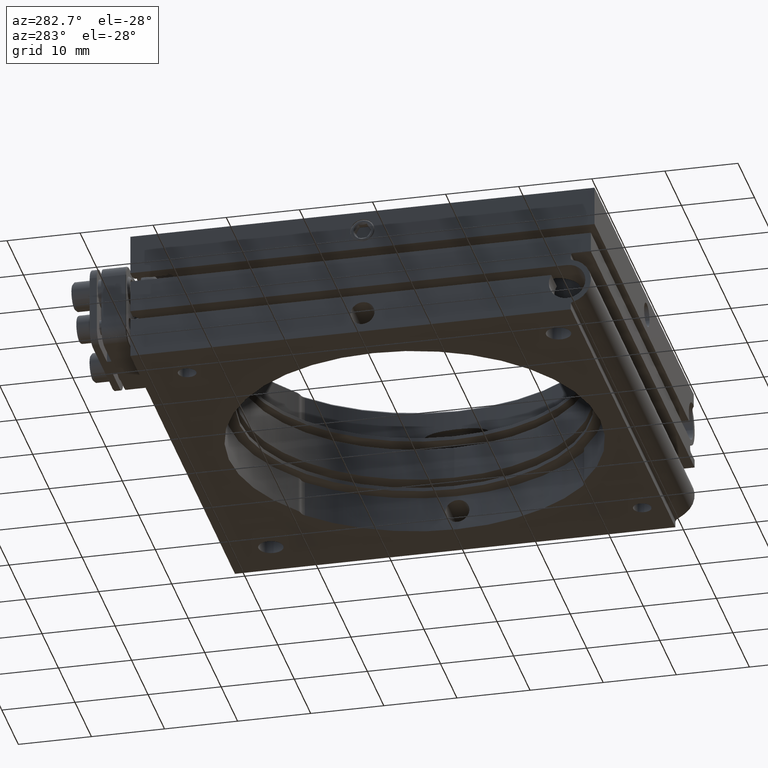
[diagram: clean part render]
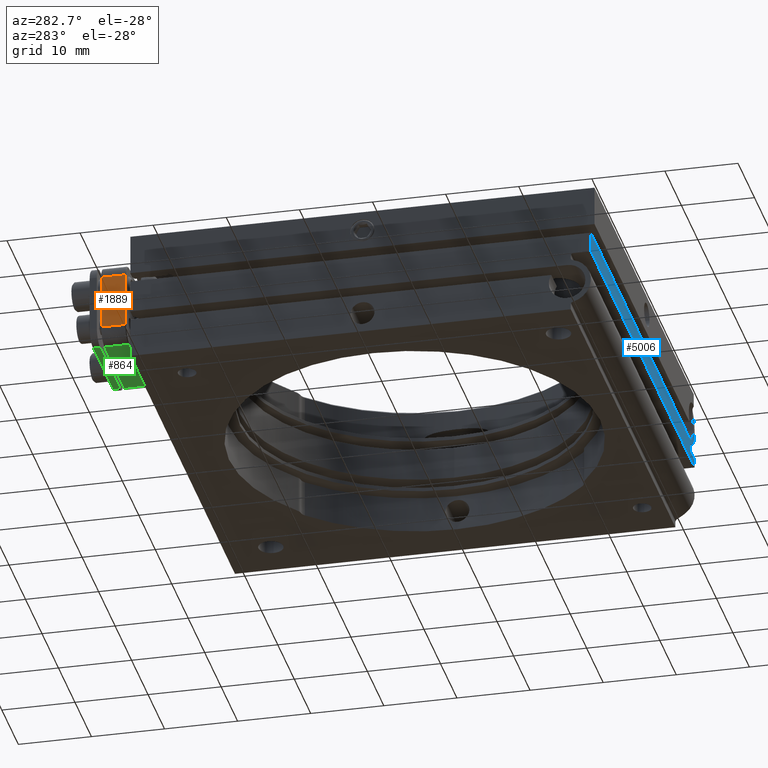
[diagram: same view with three faces highlighted in distinct colors, each labeled with its STEP entity id]
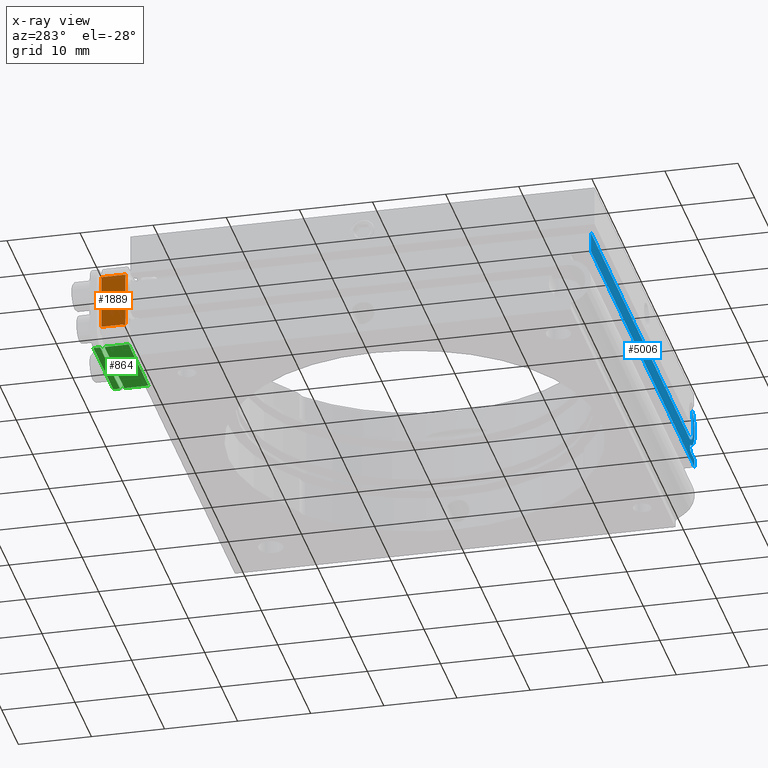
[diagram: x-ray of the same camera — body ghosted, the three highlighted faces saturated]
A machine part, auxiliary view with three faces highlighted in distinct colors.
The next image is the same camera in x-ray (body ghosted, the three faces saturated) — at least one of them is partly hidden behind the body in this view.
Their STEP definitions:

[orange] entity #1889 — the highlighted planar face has unit normal (1, 0, -0).
#904 = EDGE_CURVE ( 'NONE', #3166, #12645, #9595, .T. ) ;
#1052 = CARTESIAN_POINT ( 'NONE',  ( -8.000000000000000000, 5.000000000000000000, -5.749999999999999112 ) ) ;
#1889 = ADVANCED_FACE ( 'NONE', ( #3259 ), #4210, .F. ) ;
#1948 = CARTESIAN_POINT ( 'NONE',  ( -8.000000000000000000, 3.400000000000000355, -5.749999999999999112 ) ) ;
#2064 = DIRECTION ( 'NONE',  ( 1.000000000000000000, 0.000000000000000000, -1.508455196501571429E-16 ) ) ;
#2077 = CARTESIAN_POINT ( 'NONE',  ( -8.000000000000000000, 0.1000000000000011297, -5.749999999999999112 ) ) ;
#3166 = VERTEX_POINT ( 'NONE', #12949 ) ;
#3259 = FACE_OUTER_BOUND ( 'NONE', #13174, .T. ) ;
#3331 = ORIENTED_EDGE ( 'NONE', *, *, #7347, .T. ) ;
#3685 = CARTESIAN_POINT ( 'NONE',  ( -8.000000000000000000, 0.1000000000000011297, -3.749999999999998668 ) ) ;
#4210 = PLANE ( 'NONE',  #5076 ) ;
#4620 = VECTOR ( 'NONE', #12394, 1000.000000000000000 ) ;
#5076 = AXIS2_PLACEMENT_3D ( 'NONE', #1052, #2064, #9408 ) ;
#5446 = ORIENTED_EDGE ( 'NONE', *, *, #8997, .T. ) ;
#6509 = VECTOR ( 'NONE', #10740, 1000.000000000000000 ) ;
#6513 = CARTESIAN_POINT ( 'NONE',  ( -8.000000000000000000, 5.000000000000000000, -3.749999999999998668 ) ) ;
#6791 = VECTOR ( 'NONE', #7014, 1000.000000000000000 ) ;
#7014 = DIRECTION ( 'NONE',  ( -1.508455196501571429E-16, -2.369615550880326040E-32, -1.000000000000000000 ) ) ;
#7347 = EDGE_CURVE ( 'NONE', #12645, #11803, #11313, .T. ) ;
#7411 = EDGE_CURVE ( 'NONE', #13155, #3166, #8218, .T. ) ;
#8004 = CARTESIAN_POINT ( 'NONE',  ( -7.999999999999998224, 3.399999999999999911, 3.750000000000000888 ) ) ;
#8218 = LINE ( 'NONE', #1948, #6791 ) ;
#8969 = CARTESIAN_POINT ( 'NONE',  ( -7.999999999999998224, 0.1000000000000011297, 3.750000000000000888 ) ) ;
#8997 = EDGE_CURVE ( 'NONE', #11803, #13155, #11909, .T. ) ;
#9408 = DIRECTION ( 'NONE',  ( -1.508455196501571429E-16, 0.000000000000000000, -1.000000000000000000 ) ) ;
#9595 = LINE ( 'NONE', #6513, #6509 ) ;
#10740 = DIRECTION ( 'NONE',  ( 0.000000000000000000, -1.000000000000000000, 0.000000000000000000 ) ) ;
#10752 = CARTESIAN_POINT ( 'NONE',  ( -7.999999999999998224, 5.000000000000000000, 3.750000000000000888 ) ) ;
#11313 = LINE ( 'NONE', #2077, #4620 ) ;
#11321 = ORIENTED_EDGE ( 'NONE', *, *, #7411, .T. ) ;
#11803 = VERTEX_POINT ( 'NONE', #8969 ) ;
#11841 = DIRECTION ( 'NONE',  ( -0.000000000000000000, 1.000000000000000000, -0.000000000000000000 ) ) ;
#11909 = LINE ( 'NONE', #10752, #12625 ) ;
#12394 = DIRECTION ( 'NONE',  ( 1.508455196501571429E-16, 0.000000000000000000, 1.000000000000000000 ) ) ;
#12625 = VECTOR ( 'NONE', #11841, 1000.000000000000000 ) ;
#12645 = VERTEX_POINT ( 'NONE', #3685 ) ;
#12949 = CARTESIAN_POINT ( 'NONE',  ( -8.000000000000000000, 3.400000000000000355, -3.749999999999998668 ) ) ;
#13118 = ORIENTED_EDGE ( 'NONE', *, *, #904, .T. ) ;
#13155 = VERTEX_POINT ( 'NONE', #8004 ) ;
#13174 = EDGE_LOOP ( 'NONE', ( #13118, #3331, #5446, #11321 ) ) ;

[blue] entity #5006 — the highlighted planar face has unit normal (0, 1, 0).
#130 = DIRECTION ( 'NONE',  ( 0.000000000000000000, -1.000000000000000000, 0.000000000000000000 ) ) ;
#166 = EDGE_CURVE ( 'NONE', #6399, #12454, #12312, .T. ) ;
#310 = DIRECTION ( 'NONE',  ( -1.000000000000000000, 1.334402673828313339E-16, 0.000000000000000000 ) ) ;
#515 = AXIS2_PLACEMENT_3D ( 'NONE', #1841, #11819, #826 ) ;
#803 = ORIENTED_EDGE ( 'NONE', *, *, #10150, .F. ) ;
#826 = DIRECTION ( 'NONE',  ( -1.334402673828313339E-16, -1.000000000000000000, 0.000000000000000000 ) ) ;
#1013 = CARTESIAN_POINT ( 'NONE',  ( 31.24999999999998579, 4.749999999999999112, -28.00000000000001776 ) ) ;
#1029 = AXIS2_PLACEMENT_3D ( 'NONE', #5392, #310, #3337 ) ;
#1037 = VECTOR ( 'NONE', #11895, 1000.000000000000000 ) ;
#1054 = CARTESIAN_POINT ( 'NONE',  ( 31.24999999999998579, 0.5499999999999980460, -28.85000000000001918 ) ) ;
#1072 = CARTESIAN_POINT ( 'NONE',  ( 31.25000000000000000, 7.311737691489897273, -30.00000000000002132 ) ) ;
#1199 = CARTESIAN_POINT ( 'NONE',  ( 31.24999999999998579, 1.591890292413144836, -28.76736111111112493 ) ) ;
#1233 = DIRECTION ( 'NONE',  ( 0.000000000000000000, 0.000000000000000000, -1.000000000000000000 ) ) ;
#1312 = DIRECTION ( 'NONE',  ( 0.000000000000000000, -1.000000000000000000, 1.387778780781444492E-15 ) ) ;
#1360 = DIRECTION ( 'NONE',  ( 1.335472871940120947E-32, 1.000802005371240305E-16, -1.000000000000000000 ) ) ;
#1362 = CIRCLE ( 'NONE', #6993, 2.500000000000002220 ) ;
#1509 = VECTOR ( 'NONE', #1233, 1000.000000000000000 ) ;
#1841 = CARTESIAN_POINT ( 'NONE',  ( 31.25000000000000711, 67.00196847342608919, -31.75000000000000000 ) ) ;
#1854 = CARTESIAN_POINT ( 'NONE',  ( 31.24999999999998579, 4.749999999999999112, -31.25000000000001421 ) ) ;
#1908 = CARTESIAN_POINT ( 'NONE',  ( 31.25000000000000000, 6.250000000000000000, -30.00000000000002132 ) ) ;
#2036 = VERTEX_POINT ( 'NONE', #2250 ) ;
#2250 = CARTESIAN_POINT ( 'NONE',  ( 31.25000000000000000, 4.749999999999999112, -30.50000000000002132 ) ) ;
#2364 = DIRECTION ( 'NONE',  ( -1.334402673828313339E-16, -1.000000000000000000, -0.000000000000000000 ) ) ;
#2671 = VERTEX_POINT ( 'NONE', #5625 ) ;
#2747 = CIRCLE ( 'NONE', #1029, 3.250000000000000000 ) ;
#2964 = ORIENTED_EDGE ( 'NONE', *, *, #11288, .F. ) ;
#3003 = CARTESIAN_POINT ( 'NONE',  ( 31.25000000000000000, -0.5500000000000000444, -31.75000000000000000 ) ) ;
#3033 = ORIENTED_EDGE ( 'NONE', *, *, #12383, .T. ) ;
#3064 = CARTESIAN_POINT ( 'NONE',  ( 31.25000000000000000, 2.249999999999998668, -28.00000000000001776 ) ) ;
#3097 = DIRECTION ( 'NONE',  ( -1.000000000000000000, 1.334402673828313339E-16, 0.000000000000000000 ) ) ;
#3337 = DIRECTION ( 'NONE',  ( 0.000000000000000000, -1.000000000000000000, 0.000000000000000000 ) ) ;
#3408 = LINE ( 'NONE', #6726, #5753 ) ;
#3455 = ORIENTED_EDGE ( 'NONE', *, *, #7955, .F. ) ;
#3506 = CARTESIAN_POINT ( 'NONE',  ( 31.25000000000000711, 67.00196847342608919, 31.75000000000000000 ) ) ;
#3753 = CARTESIAN_POINT ( 'NONE',  ( 31.24999999999998579, 1.251786170057638481, -28.85000000000001918 ) ) ;
#4176 = DIRECTION ( 'NONE',  ( 1.000000000000000000, -1.334402673828313339E-16, -0.000000000000000000 ) ) ;
#4259 = EDGE_CURVE ( 'NONE', #12454, #2036, #1362, .T. ) ;
#4362 = CIRCLE ( 'NONE', #11905, 2.500000000000002220 ) ;
#4452 = AXIS2_PLACEMENT_3D ( 'NONE', #13164, #6897, #7982 ) ;
#4706 = DIRECTION ( 'NONE',  ( 1.000000000000000000, -1.334402673828313339E-16, -0.000000000000000000 ) ) ;
#4861 = EDGE_LOOP ( 'NONE', ( #9373, #6468, #3455, #2964, #10905, #8549, #803, #6786, #6766, #7087, #5121, #9344, #3033 ) ) ;
#4873 = EDGE_CURVE ( 'NONE', #2671, #7467, #8455, .T. ) ;
#5006 = ADVANCED_FACE ( 'NONE', ( #11001 ), #5903, .F. ) ;
#5121 = ORIENTED_EDGE ( 'NONE', *, *, #4259, .F. ) ;
#5337 = VECTOR ( 'NONE', #13198, 1000.000000000000000 ) ;
#5392 = CARTESIAN_POINT ( 'NONE',  ( 31.24999999999998579, 4.749999999999999112, -28.00000000000001776 ) ) ;
#5581 = VERTEX_POINT ( 'NONE', #1072 ) ;
#5624 = LINE ( 'NONE', #3506, #7516 ) ;
#5625 = CARTESIAN_POINT ( 'NONE',  ( 31.24999999999998579, 1.251786170057638481, -28.50000000000001776 ) ) ;
#5738 = AXIS2_PLACEMENT_3D ( 'NONE', #3753, #4706, #9825 ) ;
#5753 = VECTOR ( 'NONE', #6530, 1000.000000000000000 ) ;
#5785 = VERTEX_POINT ( 'NONE', #1199 ) ;
#5903 = PLANE ( 'NONE',  #515 ) ;
#6229 = CARTESIAN_POINT ( 'NONE',  ( 31.25000000000000000, 4.749999999999999112, -28.00000000000001776 ) ) ;
#6273 = EDGE_CURVE ( 'NONE', #2036, #11234, #4362, .T. ) ;
#6374 = CIRCLE ( 'NONE', #5738, 0.3500000000000000333 ) ;
#6399 = VERTEX_POINT ( 'NONE', #9806 ) ;
#6468 = ORIENTED_EDGE ( 'NONE', *, *, #12024, .T. ) ;
#6530 = DIRECTION ( 'NONE',  ( -0.000000000000000000, -1.000000000000000000, -0.000000000000000000 ) ) ;
#6637 = CARTESIAN_POINT ( 'NONE',  ( 31.24999999999998579, 1.538691855333708558, -28.50000000000001776 ) ) ;
#6726 = CARTESIAN_POINT ( 'NONE',  ( 31.25000000000000000, 9.000000000000000000, -30.00000000000002132 ) ) ;
#6766 = ORIENTED_EDGE ( 'NONE', *, *, #8962, .T. ) ;
#6786 = ORIENTED_EDGE ( 'NONE', *, *, #6972, .F. ) ;
#6897 = DIRECTION ( 'NONE',  ( 1.000000000000000000, -1.334402673828313339E-16, -0.000000000000000000 ) ) ;
#6972 = EDGE_CURVE ( 'NONE', #5581, #12205, #8440, .T. ) ;
#6993 = AXIS2_PLACEMENT_3D ( 'NONE', #6229, #4176, #130 ) ;
#7087 = ORIENTED_EDGE ( 'NONE', *, *, #6273, .F. ) ;
#7404 = DIRECTION ( 'NONE',  ( 1.000000000000000000, -1.334402673828313339E-16, -0.000000000000000000 ) ) ;
#7467 = VERTEX_POINT ( 'NONE', #12207 ) ;
#7516 = VECTOR ( 'NONE', #2364, 1000.000000000000000 ) ;
#7955 = EDGE_CURVE ( 'NONE', #12808, #9657, #12635, .T. ) ;
#7982 = DIRECTION ( 'NONE',  ( 0.000000000000000000, -1.000000000000000000, 0.000000000000000000 ) ) ;
#8125 = VERTEX_POINT ( 'NONE', #10668 ) ;
#8440 = CIRCLE ( 'NONE', #12318, 3.250000000000000000 ) ;
#8455 = LINE ( 'NONE', #6637, #8709 ) ;
#8549 = ORIENTED_EDGE ( 'NONE', *, *, #12644, .F. ) ;
#8709 = VECTOR ( 'NONE', #9459, 1000.000000000000000 ) ;
#8863 = CARTESIAN_POINT ( 'NONE',  ( 31.25000000000000711, 67.00196847342608919, -31.24999999999998579 ) ) ;
#8962 = EDGE_CURVE ( 'NONE', #5581, #11234, #3408, .T. ) ;
#9158 = EDGE_CURVE ( 'NONE', #9294, #8125, #13267, .T. ) ;
#9294 = VERTEX_POINT ( 'NONE', #10218 ) ;
#9344 = ORIENTED_EDGE ( 'NONE', *, *, #166, .F. ) ;
#9373 = ORIENTED_EDGE ( 'NONE', *, *, #9158, .T. ) ;
#9459 = DIRECTION ( 'NONE',  ( -1.334402673828313339E-16, -1.000000000000000000, 9.113463168095265324E-33 ) ) ;
#9589 = CARTESIAN_POINT ( 'NONE',  ( 31.24999999999998579, 0.5499999999999980460, -28.50000000000001421 ) ) ;
#9657 = VERTEX_POINT ( 'NONE', #9864 ) ;
#9806 = CARTESIAN_POINT ( 'NONE',  ( 31.25000000000000000, 2.250000000000001776, 31.75000000000000000 ) ) ;
#9825 = DIRECTION ( 'NONE',  ( 0.000000000000000000, -1.000000000000000000, 0.000000000000000000 ) ) ;
#9864 = CARTESIAN_POINT ( 'NONE',  ( 31.24999999999998579, 0.5499999999999983791, -31.24999999999999289 ) ) ;
#10150 = EDGE_CURVE ( 'NONE', #12205, #5785, #2747, .T. ) ;
#10218 = CARTESIAN_POINT ( 'NONE',  ( 31.25000000000000000, -0.5500000000000000444, 31.75000000000000000 ) ) ;
#10657 = CARTESIAN_POINT ( 'NONE',  ( 31.25000000000000000, 2.249999999999996891, -28.00000000000001776 ) ) ;
#10668 = CARTESIAN_POINT ( 'NONE',  ( 31.24999999999998579, -0.5499999999999949374, -31.24999999999999289 ) ) ;
#10879 = VECTOR ( 'NONE', #1360, 1000.000000000000000 ) ;
#10905 = ORIENTED_EDGE ( 'NONE', *, *, #4873, .F. ) ;
#11001 = FACE_OUTER_BOUND ( 'NONE', #4861, .T. ) ;
#11234 = VERTEX_POINT ( 'NONE', #1908 ) ;
#11288 = EDGE_CURVE ( 'NONE', #7467, #12808, #11562, .T. ) ;
#11562 = CIRCLE ( 'NONE', #4452, 0.3500000000000000333 ) ;
#11695 = LINE ( 'NONE', #8863, #1037 ) ;
#11819 = DIRECTION ( 'NONE',  ( -1.000000000000000000, 1.334402673828313339E-16, 0.000000000000000000 ) ) ;
#11895 = DIRECTION ( 'NONE',  ( 1.334402673828313339E-16, 1.000000000000000000, 1.000802005371236360E-16 ) ) ;
#11905 = AXIS2_PLACEMENT_3D ( 'NONE', #12515, #7404, #1312 ) ;
#12024 = EDGE_CURVE ( 'NONE', #8125, #9657, #11695, .T. ) ;
#12205 = VERTEX_POINT ( 'NONE', #1854 ) ;
#12207 = CARTESIAN_POINT ( 'NONE',  ( 31.24999999999998579, 0.8999999999999980238, -28.50000000000001776 ) ) ;
#12226 = DIRECTION ( 'NONE',  ( 0.000000000000000000, -1.000000000000000000, 0.000000000000000000 ) ) ;
#12312 = LINE ( 'NONE', #3064, #1509 ) ;
#12318 = AXIS2_PLACEMENT_3D ( 'NONE', #1013, #3097, #12226 ) ;
#12383 = EDGE_CURVE ( 'NONE', #6399, #9294, #5624, .T. ) ;
#12454 = VERTEX_POINT ( 'NONE', #10657 ) ;
#12515 = CARTESIAN_POINT ( 'NONE',  ( 31.25000000000000000, 4.749999999999999112, -28.00000000000001776 ) ) ;
#12635 = LINE ( 'NONE', #9589, #10879 ) ;
#12644 = EDGE_CURVE ( 'NONE', #5785, #2671, #6374, .T. ) ;
#12808 = VERTEX_POINT ( 'NONE', #1054 ) ;
#13164 = CARTESIAN_POINT ( 'NONE',  ( 31.24999999999998579, 0.8999999999999980238, -28.85000000000001918 ) ) ;
#13198 = DIRECTION ( 'NONE',  ( -0.000000000000000000, -0.000000000000000000, -1.000000000000000000 ) ) ;
#13267 = LINE ( 'NONE', #3003, #5337 ) ;

[green] entity #864 — the highlighted planar face has unit normal (0, 0, 1).
#66 = CARTESIAN_POINT ( 'NONE',  ( 1.800000000000000044, 4.000000000000000888, -5.749999999999999112 ) ) ;
#68 = LINE ( 'NONE', #1147, #12358 ) ;
#97 = EDGE_CURVE ( 'NONE', #7346, #12815, #5173, .T. ) ;
#157 = DIRECTION ( 'NONE',  ( 1.000000000000000000, 0.000000000000000000, 0.000000000000000000 ) ) ;
#301 = VERTEX_POINT ( 'NONE', #11616 ) ;
#316 = ORIENTED_EDGE ( 'NONE', *, *, #5237, .T. ) ;
#361 = DIRECTION ( 'NONE',  ( 0.000000000000000000, 0.000000000000000000, 1.000000000000000000 ) ) ;
#363 = DIRECTION ( 'NONE',  ( -1.000000000000000000, -1.047259278399945846E-16, 0.000000000000000000 ) ) ;
#729 = VECTOR ( 'NONE', #2101, 1000.000000000000000 ) ;
#855 = EDGE_CURVE ( 'NONE', #12815, #2186, #7458, .T. ) ;
#864 = ADVANCED_FACE ( 'NONE', ( #11559 ), #8662, .F. ) ;
#900 = CARTESIAN_POINT ( 'NONE',  ( 1.800000000000000266, 3.400000000000001688, -5.749999999999999112 ) ) ;
#1089 = LINE ( 'NONE', #12301, #13299 ) ;
#1132 = VERTEX_POINT ( 'NONE', #900 ) ;
#1147 = CARTESIAN_POINT ( 'NONE',  ( 6.000000000000000000, 5.000000000000000000, -5.749999999999999112 ) ) ;
#1220 = VECTOR ( 'NONE', #157, 1000.000000000000000 ) ;
#1245 = CARTESIAN_POINT ( 'NONE',  ( 6.000000000000000000, 4.000000000000000000, -5.749999999999999112 ) ) ;
#1288 = CARTESIAN_POINT ( 'NONE',  ( 1.800000000000000044, 4.000000000000000888, -5.749999999999999112 ) ) ;
#1394 = LINE ( 'NONE', #11922, #12411 ) ;
#1637 = VERTEX_POINT ( 'NONE', #6669 ) ;
#2101 = DIRECTION ( 'NONE',  ( 1.000000000000000000, 1.047259278399945846E-16, 0.000000000000000000 ) ) ;
#2186 = VERTEX_POINT ( 'NONE', #10612 ) ;
#2306 = DIRECTION ( 'NONE',  ( 3.614007241618351729E-16, -1.000000000000000000, 0.000000000000000000 ) ) ;
#2582 = CARTESIAN_POINT ( 'NONE',  ( -1.800000000000000044, 4.000000000000000888, -5.749999999999999112 ) ) ;
#2614 = EDGE_CURVE ( 'NONE', #1637, #1132, #3308, .T. ) ;
#2649 = ORIENTED_EDGE ( 'NONE', *, *, #12687, .T. ) ;
#2808 = ORIENTED_EDGE ( 'NONE', *, *, #4227, .T. ) ;
#3302 = ORIENTED_EDGE ( 'NONE', *, *, #97, .T. ) ;
#3308 = LINE ( 'NONE', #1288, #8524 ) ;
#3394 = ORIENTED_EDGE ( 'NONE', *, *, #11539, .T. ) ;
#3414 = VERTEX_POINT ( 'NONE', #1245 ) ;
#3836 = VECTOR ( 'NONE', #363, 1000.000000000000000 ) ;
#4086 = CARTESIAN_POINT ( 'NONE',  ( -6.000000000000000000, 3.400000000000000355, -5.749999999999999112 ) ) ;
#4180 = EDGE_CURVE ( 'NONE', #1132, #13002, #12292, .T. ) ;
#4227 = EDGE_CURVE ( 'NONE', #3414, #1637, #12420, .T. ) ;
#5052 = DIRECTION ( 'NONE',  ( 0.000000000000000000, -1.000000000000000000, 0.000000000000000000 ) ) ;
#5085 = DIRECTION ( 'NONE',  ( 0.000000000000000000, -1.000000000000000000, 0.000000000000000000 ) ) ;
#5149 = ORIENTED_EDGE ( 'NONE', *, *, #2614, .T. ) ;
#5173 = LINE ( 'NONE', #11554, #10994 ) ;
#5184 = LINE ( 'NONE', #13071, #12830 ) ;
#5212 = AXIS2_PLACEMENT_3D ( 'NONE', #5638, #361, #8463 ) ;
#5237 = EDGE_CURVE ( 'NONE', #8470, #3414, #68, .T. ) ;
#5271 = VECTOR ( 'NONE', #6163, 1000.000000000000000 ) ;
#5279 = CARTESIAN_POINT ( 'NONE',  ( 1.800000000000000266, 3.400000000000001688, -5.749999999999999112 ) ) ;
#5302 = DIRECTION ( 'NONE',  ( -0.000000000000000000, 1.000000000000000000, -0.000000000000000000 ) ) ;
#5553 = VERTEX_POINT ( 'NONE', #6094 ) ;
#5638 = CARTESIAN_POINT ( 'NONE',  ( -8.000000000000000000, 5.000000000000000000, -5.749999999999999112 ) ) ;
#5776 = LINE ( 'NONE', #2582, #3836 ) ;
#6094 = CARTESIAN_POINT ( 'NONE',  ( 6.000000000000000000, 0.1000000000000011297, -5.749999999999999112 ) ) ;
#6096 = VECTOR ( 'NONE', #11492, 1000.000000000000000 ) ;
#6163 = DIRECTION ( 'NONE',  ( -1.000000000000000000, 1.047259278399945846E-16, -0.000000000000000000 ) ) ;
#6206 = CARTESIAN_POINT ( 'NONE',  ( -6.000000000000000000, 0.1000000000000011297, -5.749999999999999112 ) ) ;
#6264 = EDGE_LOOP ( 'NONE', ( #7333, #11569, #3302, #6935, #2649, #10616, #3394, #8822, #316, #2808, #5149, #7696 ) ) ;
#6290 = VERTEX_POINT ( 'NONE', #12391 ) ;
#6313 = CARTESIAN_POINT ( 'NONE',  ( 6.000000000000000000, 4.900000000000002132, -5.749999999999999112 ) ) ;
#6362 = DIRECTION ( 'NONE',  ( -1.000000000000000000, 0.000000000000000000, 0.000000000000000000 ) ) ;
#6546 = CARTESIAN_POINT ( 'NONE',  ( -6.000000000000000000, 5.000000000000000000, -5.749999999999999112 ) ) ;
#6669 = CARTESIAN_POINT ( 'NONE',  ( 1.800000000000000044, 4.000000000000000888, -5.749999999999999112 ) ) ;
#6935 = ORIENTED_EDGE ( 'NONE', *, *, #855, .T. ) ;
#6946 = CARTESIAN_POINT ( 'NONE',  ( 6.000000000000000000, 4.900000000000002132, -5.749999999999999112 ) ) ;
#7300 = LINE ( 'NONE', #6546, #8357 ) ;
#7333 = ORIENTED_EDGE ( 'NONE', *, *, #12842, .T. ) ;
#7346 = VERTEX_POINT ( 'NONE', #6206 ) ;
#7458 = LINE ( 'NONE', #11621, #6096 ) ;
#7556 = DIRECTION ( 'NONE',  ( -0.000000000000000000, 1.000000000000000000, -0.000000000000000000 ) ) ;
#7621 = DIRECTION ( 'NONE',  ( -3.614007241618349264E-16, 1.000000000000000000, -0.000000000000000000 ) ) ;
#7696 = ORIENTED_EDGE ( 'NONE', *, *, #4180, .T. ) ;
#8357 = VECTOR ( 'NONE', #7556, 1000.000000000000000 ) ;
#8394 = LINE ( 'NONE', #6313, #1220 ) ;
#8463 = DIRECTION ( 'NONE',  ( 1.000000000000000000, 0.000000000000000000, -0.000000000000000000 ) ) ;
#8470 = VERTEX_POINT ( 'NONE', #6946 ) ;
#8524 = VECTOR ( 'NONE', #2306, 1000.000000000000000 ) ;
#8662 = PLANE ( 'NONE',  #5212 ) ;
#8822 = ORIENTED_EDGE ( 'NONE', *, *, #9306, .T. ) ;
#9029 = VERTEX_POINT ( 'NONE', #10621 ) ;
#9306 = EDGE_CURVE ( 'NONE', #6290, #8470, #8394, .T. ) ;
#9473 = CARTESIAN_POINT ( 'NONE',  ( 6.000000000000000000, 3.400000000000002132, -5.749999999999999112 ) ) ;
#10612 = CARTESIAN_POINT ( 'NONE',  ( -1.799999999999999822, 3.400000000000001243, -5.749999999999999112 ) ) ;
#10616 = ORIENTED_EDGE ( 'NONE', *, *, #12042, .T. ) ;
#10621 = CARTESIAN_POINT ( 'NONE',  ( -1.800000000000000044, 4.000000000000000888, -5.749999999999999112 ) ) ;
#10967 = EDGE_CURVE ( 'NONE', #5553, #7346, #1089, .T. ) ;
#10994 = VECTOR ( 'NONE', #5302, 1000.000000000000000 ) ;
#11492 = DIRECTION ( 'NONE',  ( 1.000000000000000000, 1.570888917599918769E-16, -0.000000000000000000 ) ) ;
#11539 = EDGE_CURVE ( 'NONE', #301, #6290, #7300, .T. ) ;
#11554 = CARTESIAN_POINT ( 'NONE',  ( -6.000000000000000000, 5.000000000000000000, -5.749999999999999112 ) ) ;
#11559 = FACE_OUTER_BOUND ( 'NONE', #6264, .T. ) ;
#11569 = ORIENTED_EDGE ( 'NONE', *, *, #10967, .T. ) ;
#11616 = CARTESIAN_POINT ( 'NONE',  ( -6.000000000000000000, 4.000000000000000000, -5.749999999999999112 ) ) ;
#11621 = CARTESIAN_POINT ( 'NONE',  ( -1.799999999999999822, 3.400000000000001243, -5.749999999999999112 ) ) ;
#11922 = CARTESIAN_POINT ( 'NONE',  ( -1.800000000000000044, 4.000000000000000888, -5.749999999999999112 ) ) ;
#12042 = EDGE_CURVE ( 'NONE', #9029, #301, #5776, .T. ) ;
#12292 = LINE ( 'NONE', #5279, #729 ) ;
#12301 = CARTESIAN_POINT ( 'NONE',  ( -8.000000000000000000, 0.1000000000000011297, -5.749999999999999112 ) ) ;
#12358 = VECTOR ( 'NONE', #5085, 1000.000000000000000 ) ;
#12391 = CARTESIAN_POINT ( 'NONE',  ( -6.000000000000000000, 4.900000000000002132, -5.749999999999999112 ) ) ;
#12411 = VECTOR ( 'NONE', #7621, 1000.000000000000000 ) ;
#12420 = LINE ( 'NONE', #66, #5271 ) ;
#12687 = EDGE_CURVE ( 'NONE', #2186, #9029, #1394, .T. ) ;
#12815 = VERTEX_POINT ( 'NONE', #4086 ) ;
#12830 = VECTOR ( 'NONE', #5052, 1000.000000000000000 ) ;
#12842 = EDGE_CURVE ( 'NONE', #13002, #5553, #5184, .T. ) ;
#13002 = VERTEX_POINT ( 'NONE', #9473 ) ;
#13071 = CARTESIAN_POINT ( 'NONE',  ( 6.000000000000000000, 5.000000000000000000, -5.749999999999999112 ) ) ;
#13299 = VECTOR ( 'NONE', #6362, 1000.000000000000000 ) ;